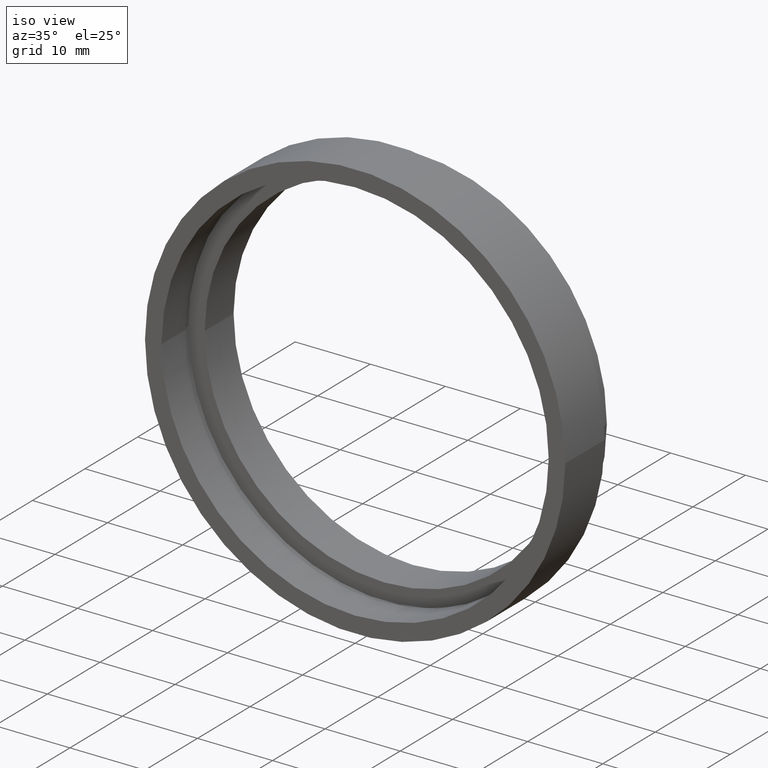
[diagram: clean part render]
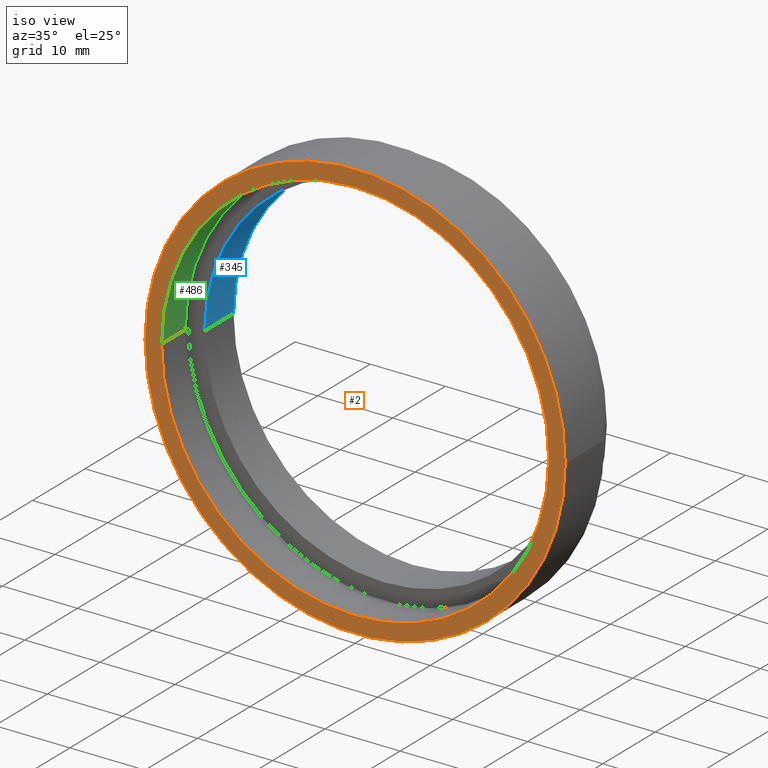
[diagram: same view with three faces highlighted in distinct colors, each labeled with its STEP entity id]
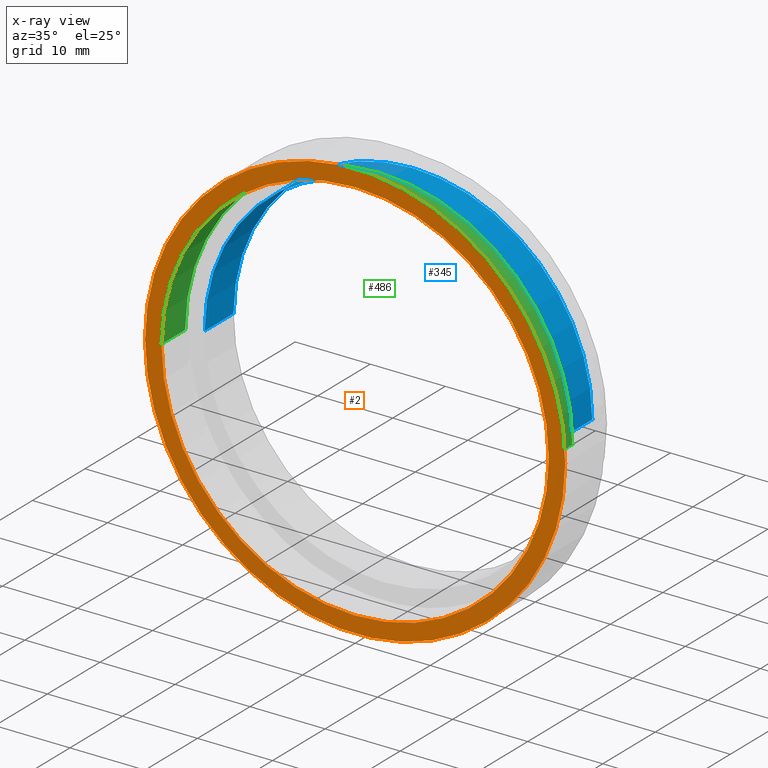
[diagram: x-ray of the same camera — body ghosted, the three highlighted faces saturated]
A machine part, iso view with three faces highlighted in distinct colors.
The next image is the same camera in x-ray (body ghosted, the three faces saturated) — at least one of them is partly hidden behind the body in this view.
Their STEP definitions:

[orange] entity #2 — the highlighted planar face has unit normal (-0, 1, 0).
#2 = ADVANCED_FACE ( 'NONE', ( #99, #369 ), #515, .F. ) ;
#4 = DIRECTION ( 'NONE',  ( -1.224646799147351000E-016, 1.000000000000000000, -0.0000000000000000000 ) ) ;
#22 = CARTESIAN_POINT ( 'NONE',  ( -25.79999999999999700, -6.629035693753779700E-015, 0.0000000000000000000 ) ) ;
#48 = CARTESIAN_POINT ( 'NONE',  ( 2.067940818438636500E-015, -3.469446951953614200E-015, 0.0000000000000000000 ) ) ;
#53 = ORIENTED_EDGE ( 'NONE', *, *, #257, .F. ) ;
#59 = DIRECTION ( 'NONE',  ( -1.000000000000000000, -1.224646799147351200E-016, 0.0000000000000000000 ) ) ;
#96 = CARTESIAN_POINT ( 'NONE',  ( 2.067940818438636500E-015, -3.469446951953614200E-015, 0.0000000000000000000 ) ) ;
#99 = FACE_OUTER_BOUND ( 'NONE', #124, .T. ) ;
#123 = ORIENTED_EDGE ( 'NONE', *, *, #615, .F. ) ;
#124 = EDGE_LOOP ( 'NONE', ( #123, #53 ) ) ;
#137 = AXIS2_PLACEMENT_3D ( 'NONE', #335, #224, #371 ) ;
#152 = ORIENTED_EDGE ( 'NONE', *, *, #199, .T. ) ;
#191 = EDGE_CURVE ( 'NONE', #516, #342, #334, .T. ) ;
#196 = EDGE_LOOP ( 'NONE', ( #278, #152 ) ) ;
#197 = CIRCLE ( 'NONE', #245, 25.80000000000000100 ) ;
#198 = CARTESIAN_POINT ( 'NONE',  ( 2.067940818438636500E-015, -3.469446951953614200E-015, 0.0000000000000000000 ) ) ;
#199 = EDGE_CURVE ( 'NONE', #342, #516, #197, .T. ) ;
#200 = DIRECTION ( 'NONE',  ( -1.000000000000000000, -1.224646799147351200E-016, 0.0000000000000000000 ) ) ;
#224 = DIRECTION ( 'NONE',  ( -1.224646799147351000E-016, 1.000000000000000000, 0.0000000000000000000 ) ) ;
#245 = AXIS2_PLACEMENT_3D ( 'NONE', #96, #4, #441 ) ;
#257 = EDGE_CURVE ( 'NONE', #613, #521, #570, .T. ) ;
#260 = AXIS2_PLACEMENT_3D ( 'NONE', #48, #453, #59 ) ;
#278 = ORIENTED_EDGE ( 'NONE', *, *, #191, .T. ) ;
#302 = DIRECTION ( 'NONE',  ( -1.224646799147351000E-016, 1.000000000000000000, -0.0000000000000000000 ) ) ;
#307 = CARTESIAN_POINT ( 'NONE',  ( 25.80000000000000400, -3.098582101534486800E-016, 3.159588741800171900E-015 ) ) ;
#326 = AXIS2_PLACEMENT_3D ( 'NONE', #573, #302, #200 ) ;
#334 = CIRCLE ( 'NONE', #574, 25.80000000000000100 ) ;
#335 = CARTESIAN_POINT ( 'NONE',  ( 28.00000000000000000, -4.814824860968089600E-032, 0.0000000000000000000 ) ) ;
#342 = VERTEX_POINT ( 'NONE', #307 ) ;
#369 = FACE_BOUND ( 'NONE', #196, .T. ) ;
#371 = DIRECTION ( 'NONE',  ( -1.000000000000000000, -1.224646799147351000E-016, 0.0000000000000000000 ) ) ;
#389 = DIRECTION ( 'NONE',  ( -1.224646799147351000E-016, 1.000000000000000000, -0.0000000000000000000 ) ) ;
#441 = DIRECTION ( 'NONE',  ( -1.000000000000000000, -1.224646799147351000E-016, 0.0000000000000000000 ) ) ;
#453 = DIRECTION ( 'NONE',  ( -1.224646799147351000E-016, 1.000000000000000000, -0.0000000000000000000 ) ) ;
#485 = CARTESIAN_POINT ( 'NONE',  ( 28.00000000000000400, -4.043591434103126100E-017, 3.429011037612589700E-015 ) ) ;
#515 = PLANE ( 'NONE',  #137 ) ;
#516 = VERTEX_POINT ( 'NONE', #22 ) ;
#521 = VERTEX_POINT ( 'NONE', #552 ) ;
#538 = DIRECTION ( 'NONE',  ( -1.000000000000000000, -1.224646799147351000E-016, 0.0000000000000000000 ) ) ;
#552 = CARTESIAN_POINT ( 'NONE',  ( -27.99999999999999300, -6.898457989566196800E-015, 0.0000000000000000000 ) ) ;
#570 = CIRCLE ( 'NONE', #260, 27.99999999999999600 ) ;
#573 = CARTESIAN_POINT ( 'NONE',  ( 2.067940818438636500E-015, -3.469446951953614200E-015, 0.0000000000000000000 ) ) ;
#574 = AXIS2_PLACEMENT_3D ( 'NONE', #198, #389, #538 ) ;
#599 = CIRCLE ( 'NONE', #326, 27.99999999999999600 ) ;
#613 = VERTEX_POINT ( 'NONE', #485 ) ;
#615 = EDGE_CURVE ( 'NONE', #521, #613, #599, .T. ) ;

[blue] entity #345 — the highlighted cylindrical surface (partial cylindrical patch) has radius 23.9 mm, axis along (-0, 1, -0).
#10 = DIRECTION ( 'NONE',  ( -1.000000000000000000, -1.088738583249042200E-016, 0.0000000000000000000 ) ) ;
#16 = CARTESIAN_POINT ( 'NONE',  ( 0.0000000000000000000, 16.88601823708207700, 0.0000000000000000000 ) ) ;
#21 = VECTOR ( 'NONE', #138, 1000.000000000000000 ) ;
#25 = DIRECTION ( 'NONE',  ( -1.000000000000000000, -1.451651444332056200E-016, 0.0000000000000000000 ) ) ;
#40 = CYLINDRICAL_SURFACE ( 'NONE', #612, 23.89999999999999900 ) ;
#51 = DIRECTION ( 'NONE',  ( -1.224646799147351000E-016, 1.000000000000000000, -0.0000000000000000000 ) ) ;
#61 = DIRECTION ( 'NONE',  ( -1.000000000000000000, -1.451651444332056200E-016, 0.0000000000000000000 ) ) ;
#63 = DIRECTION ( 'NONE',  ( -1.224646799147351000E-016, 1.000000000000000000, -0.0000000000000000000 ) ) ;
#100 = VERTEX_POINT ( 'NONE', #190 ) ;
#109 = AXIS2_PLACEMENT_3D ( 'NONE', #171, #120, #25 ) ;
#119 = EDGE_CURVE ( 'NONE', #562, #368, #263, .T. ) ;
#120 = DIRECTION ( 'NONE',  ( -1.224646799147351000E-016, 1.000000000000000000, -0.0000000000000000000 ) ) ;
#131 = FACE_OUTER_BOUND ( 'NONE', #262, .T. ) ;
#138 = DIRECTION ( 'NONE',  ( -1.224646799147351000E-016, 1.000000000000000000, -0.0000000000000000000 ) ) ;
#148 = CARTESIAN_POINT ( 'NONE',  ( 23.89999999999999900, 16.88601823708208000, 2.926905849962173700E-015 ) ) ;
#162 = DIRECTION ( 'NONE',  ( -1.224646799147351000E-016, 1.000000000000000000, -0.0000000000000000000 ) ) ;
#171 = CARTESIAN_POINT ( 'NONE',  ( 7.208293393765501500E-016, 10.99999999999999600, 0.0000000000000000000 ) ) ;
#190 = CARTESIAN_POINT ( 'NONE',  ( 23.89999999999999900, 5.499999999999999100, 2.926905849962173700E-015 ) ) ;
#229 = EDGE_CURVE ( 'NONE', #100, #379, #458, .T. ) ;
#258 = CARTESIAN_POINT ( 'NONE',  ( 23.89999999999999900, 11.00000000000000000, 2.926905849962173700E-015 ) ) ;
#262 = EDGE_LOOP ( 'NONE', ( #314, #419, #489, #505 ) ) ;
#263 = LINE ( 'NONE', #431, #21 ) ;
#272 = CIRCLE ( 'NONE', #296, 23.89999999999999900 ) ;
#296 = AXIS2_PLACEMENT_3D ( 'NONE', #494, #162, #10 ) ;
#312 = CARTESIAN_POINT ( 'NONE',  ( -23.89999999999999900, 10.99999999999999300, 0.0000000000000000000 ) ) ;
#314 = ORIENTED_EDGE ( 'NONE', *, *, #229, .F. ) ;
#320 = VECTOR ( 'NONE', #51, 1000.000000000000000 ) ;
#325 = EDGE_CURVE ( 'NONE', #562, #100, #272, .T. ) ;
#340 = CIRCLE ( 'NONE', #109, 23.89999999999999900 ) ;
#345 = ADVANCED_FACE ( 'NONE', ( #131 ), #40, .F. ) ;
#368 = VERTEX_POINT ( 'NONE', #312 ) ;
#376 = CARTESIAN_POINT ( 'NONE',  ( -23.89999999999999900, 5.499999999999993800, 0.0000000000000000000 ) ) ;
#379 = VERTEX_POINT ( 'NONE', #258 ) ;
#419 = ORIENTED_EDGE ( 'NONE', *, *, #325, .F. ) ;
#429 = EDGE_CURVE ( 'NONE', #368, #379, #340, .T. ) ;
#431 = CARTESIAN_POINT ( 'NONE',  ( -23.89999999999999900, 16.88601823708207300, 0.0000000000000000000 ) ) ;
#458 = LINE ( 'NONE', #148, #320 ) ;
#489 = ORIENTED_EDGE ( 'NONE', *, *, #119, .T. ) ;
#494 = CARTESIAN_POINT ( 'NONE',  ( 1.394385078907593200E-015, 5.499999999999996400, 0.0000000000000000000 ) ) ;
#505 = ORIENTED_EDGE ( 'NONE', *, *, #429, .T. ) ;
#562 = VERTEX_POINT ( 'NONE', #376 ) ;
#612 = AXIS2_PLACEMENT_3D ( 'NONE', #16, #63, #61 ) ;

[green] entity #486 — the highlighted cylindrical surface (partial cylindrical patch) has radius 25.8 mm, axis along (-0, 1, -0).
#19 = VECTOR ( 'NONE', #432, 1000.000000000000000 ) ;
#22 = CARTESIAN_POINT ( 'NONE',  ( -25.79999999999999700, -6.629035693753779700E-015, 0.0000000000000000000 ) ) ;
#35 = VERTEX_POINT ( 'NONE', #225 ) ;
#49 = DIRECTION ( 'NONE',  ( -1.224646799147351000E-016, 1.000000000000000000, -0.0000000000000000000 ) ) ;
#50 = EDGE_CURVE ( 'NONE', #342, #35, #242, .T. ) ;
#71 = CARTESIAN_POINT ( 'NONE',  ( 0.0000000000000000000, 16.88601823708207700, 0.0000000000000000000 ) ) ;
#72 = AXIS2_PLACEMENT_3D ( 'NONE', #71, #168, #221 ) ;
#86 = CARTESIAN_POINT ( 'NONE',  ( 25.80000000000000400, 16.88601823708208000, 3.159588741800171900E-015 ) ) ;
#135 = CYLINDRICAL_SURFACE ( 'NONE', #72, 25.80000000000000400 ) ;
#139 = DIRECTION ( 'NONE',  ( -1.224646799147351000E-016, 1.000000000000000000, -0.0000000000000000000 ) ) ;
#168 = DIRECTION ( 'NONE',  ( -1.224646799147351000E-016, 1.000000000000000000, -0.0000000000000000000 ) ) ;
#175 = CIRCLE ( 'NONE', #216, 25.80000000000000400 ) ;
#179 = ORIENTED_EDGE ( 'NONE', *, *, #50, .F. ) ;
#182 = EDGE_CURVE ( 'NONE', #271, #35, #175, .T. ) ;
#183 = CARTESIAN_POINT ( 'NONE',  ( -25.80000000000000400, 16.88601823708207300, 0.0000000000000000000 ) ) ;
#191 = EDGE_CURVE ( 'NONE', #516, #342, #334, .T. ) ;
#198 = CARTESIAN_POINT ( 'NONE',  ( 2.067940818438636500E-015, -3.469446951953614200E-015, 0.0000000000000000000 ) ) ;
#216 = AXIS2_PLACEMENT_3D ( 'NONE', #308, #49, #495 ) ;
#221 = DIRECTION ( 'NONE',  ( -1.000000000000000000, -1.344746880602175700E-016, 0.0000000000000000000 ) ) ;
#225 = CARTESIAN_POINT ( 'NONE',  ( 25.80000000000000400, 4.500000000000000900, 3.159588741800171900E-015 ) ) ;
#241 = ORIENTED_EDGE ( 'NONE', *, *, #182, .T. ) ;
#242 = LINE ( 'NONE', #86, #543 ) ;
#271 = VERTEX_POINT ( 'NONE', #455 ) ;
#277 = FACE_OUTER_BOUND ( 'NONE', #481, .T. ) ;
#306 = LINE ( 'NONE', #183, #19 ) ;
#307 = CARTESIAN_POINT ( 'NONE',  ( 25.80000000000000400, -3.098582101534486800E-016, 3.159588741800171900E-015 ) ) ;
#308 = CARTESIAN_POINT ( 'NONE',  ( 1.516849758822328300E-015, 4.499999999999997300, 0.0000000000000000000 ) ) ;
#334 = CIRCLE ( 'NONE', #574, 25.80000000000000100 ) ;
#342 = VERTEX_POINT ( 'NONE', #307 ) ;
#389 = DIRECTION ( 'NONE',  ( -1.224646799147351000E-016, 1.000000000000000000, -0.0000000000000000000 ) ) ;
#432 = DIRECTION ( 'NONE',  ( -1.224646799147351000E-016, 1.000000000000000000, -0.0000000000000000000 ) ) ;
#455 = CARTESIAN_POINT ( 'NONE',  ( -25.80000000000000400, 4.499999999999993800, 0.0000000000000000000 ) ) ;
#481 = EDGE_LOOP ( 'NONE', ( #179, #512, #499, #241 ) ) ;
#486 = ADVANCED_FACE ( 'NONE', ( #277 ), #135, .F. ) ;
#495 = DIRECTION ( 'NONE',  ( -1.000000000000000000, -1.344746880602175700E-016, 0.0000000000000000000 ) ) ;
#499 = ORIENTED_EDGE ( 'NONE', *, *, #608, .T. ) ;
#512 = ORIENTED_EDGE ( 'NONE', *, *, #191, .F. ) ;
#516 = VERTEX_POINT ( 'NONE', #22 ) ;
#538 = DIRECTION ( 'NONE',  ( -1.000000000000000000, -1.224646799147351000E-016, 0.0000000000000000000 ) ) ;
#543 = VECTOR ( 'NONE', #139, 1000.000000000000000 ) ;
#574 = AXIS2_PLACEMENT_3D ( 'NONE', #198, #389, #538 ) ;
#608 = EDGE_CURVE ( 'NONE', #516, #271, #306, .T. ) ;